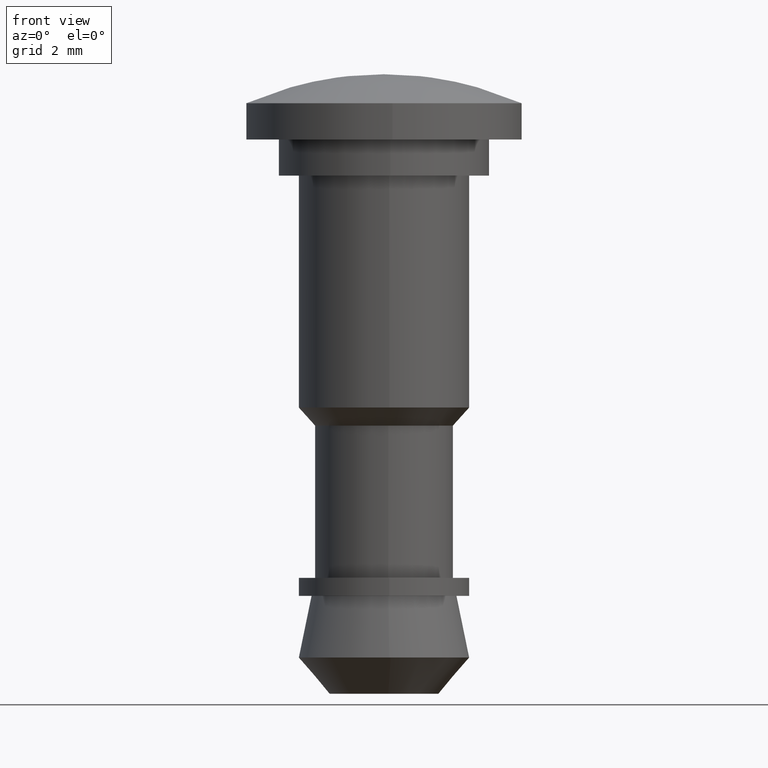
[diagram: clean part render]
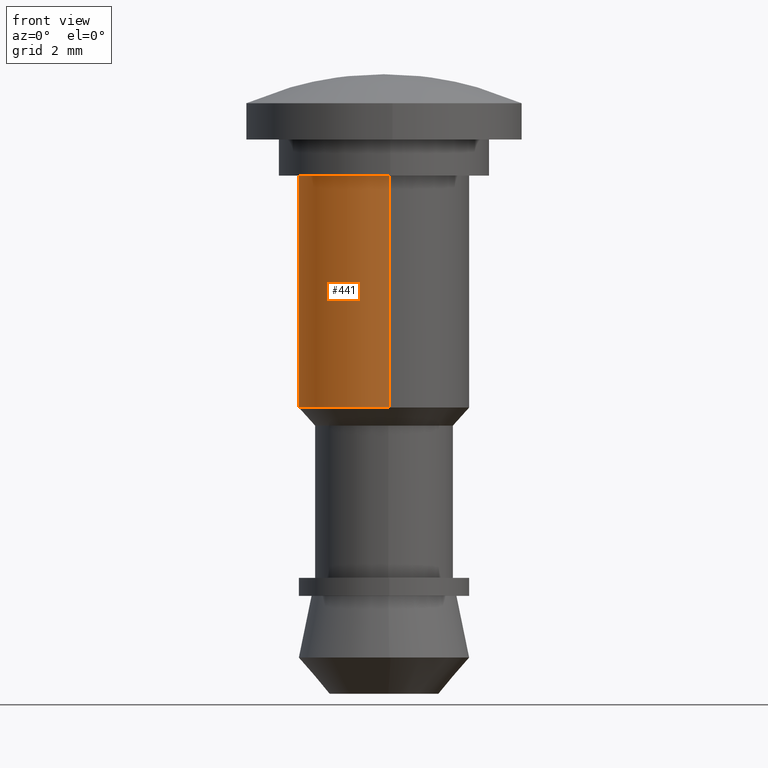
[diagram: same view with one face highlighted and labeled with its STEP entity id]
A machine part, front view. The second image highlights one B-rep face of the part: STEP entity #441.
In plain terms, the highlighted face is a freeform B-spline surface patch.
Its self-contained STEP definition (entity closure, byte-faithful):
#248=CARTESIAN_POINT('',(-0.143464067918807,2.345616776290660,-6.400000000000111));
#249=VERTEX_POINT('',#248);
#267=CARTESIAN_POINT('',(-0.143464067918807,2.345616776290660,2.220446E-016));
#268=VERTEX_POINT('',#267);
#269=CARTESIAN_POINT('',(-0.143464067918807,2.345616776290660,2.220446E-016));
#270=CARTESIAN_POINT('',(-0.143464067918807,2.345616776290660,-6.400000000000111));
#271=QUASI_UNIFORM_CURVE('',1,(#269,#270),.UNSPECIFIED.,.F.,.U.);
#272=EDGE_CURVE('',#268,#249,#271,.T.);
#291=CARTESIAN_POINT('',(0.143464067918807,-2.345616776290660,2.220446E-016));
#292=VERTEX_POINT('',#291);
#306=CARTESIAN_POINT('',(0.143463873339650,-2.345616788191615,-6.400000000000112));
#307=VERTEX_POINT('',#306);
#308=CARTESIAN_POINT('',(0.143464067918807,-2.345616776290660,2.220446E-016));
#309=CARTESIAN_POINT('',(0.143463873339650,-2.345616788191615,-6.400000000000112));
#310=QUASI_UNIFORM_CURVE('',1,(#308,#309),.UNSPECIFIED.,.F.,.U.);
#311=EDGE_CURVE('',#292,#307,#310,.T.);
#359=CARTESIAN_POINT('',(0.143464067906914,-2.345616776291387,0.160000000000003));
#360=CARTESIAN_POINT('',(-2.202152708384472,-2.489080844198301,0.160000000000003));
#361=CARTESIAN_POINT('',(-2.345616776291387,-0.143464067906914,0.160000000000003));
#362=CARTESIAN_POINT('',(-2.489080844198301,2.202152708384472,0.160000000000003));
#363=CARTESIAN_POINT('',(-0.143464067906914,2.345616776291387,0.160000000000003));
#364=CARTESIAN_POINT('',(0.143464067906914,-2.345616776291387,-6.564000000000114));
#365=CARTESIAN_POINT('',(-2.202152708384472,-2.489080844198301,-6.564000000000114));
#366=CARTESIAN_POINT('',(-2.345616776291387,-0.143464067906914,-6.564000000000114));
#367=CARTESIAN_POINT('',(-2.489080844198301,2.202152708384472,-6.564000000000114));
#368=CARTESIAN_POINT('',(-0.143464067906914,2.345616776291387,-6.564000000000114));
#376=(BOUNDED_SURFACE()B_SPLINE_SURFACE(2,1,((#359,#364),(#360,#365),(#361,#366),(#362,#367),(#363,#368)),.UNSPECIFIED.,.F.,.F.,.U.)B_SPLINE_SURFACE_WITH_KNOTS((3,2,3),(2,2),(0.0,3.893607486307092,7.787214972614184),(0.0,6.724000000000117),.UNSPECIFIED.)GEOMETRIC_REPRESENTATION_ITEM()RATIONAL_B_SPLINE_SURFACE(((1.0,1.0),(0.707106781186548,0.707106781186548),(1.0,1.0),(0.707106781186548,0.707106781186548),(1.0,1.0)))REPRESENTATION_ITEM('')SURFACE());
#377=CARTESIAN_POINT('',(-2.350000000000000,0.0,-6.400000000000111));
#378=VERTEX_POINT('',#377);
#379=CARTESIAN_POINT('',(-2.350000000000000,0.0,-6.400000000000111));
#380=CARTESIAN_POINT('',(-2.350000000000001,2.210659257205923,-6.400000000000111));
#381=CARTESIAN_POINT('',(-0.143464067918807,2.345616776290660,-6.400000000000111));
#389=(BOUNDED_CURVE()B_SPLINE_CURVE(2,(#379,#380,#381),.UNSPECIFIED.,.F.,.U.)B_SPLINE_CURVE_WITH_KNOTS((3,3),(0.0,0.239332962240218),.UNSPECIFIED.)CURVE()GEOMETRIC_REPRESENTATION_ITEM()RATIONAL_B_SPLINE_CURVE((1.0,0.719603993285216,0.976072041669452))REPRESENTATION_ITEM(''));
#390=EDGE_CURVE('',#378,#249,#389,.T.);
#391=ORIENTED_EDGE('',*,*,#390,.F.);
#392=CARTESIAN_POINT('',(0.143463873339650,-2.345616788191615,-6.400000000000112));
#393=CARTESIAN_POINT('',(0.071798798638874,-2.350000000000000,-6.400000000000111));
#394=CARTESIAN_POINT('',(0.0,-2.350000000000000,-6.400000000000111));
#395=CARTESIAN_POINT('',(-2.350000000000001,-2.350000000000001,-6.400000000000110));
#396=CARTESIAN_POINT('',(-2.350000000000000,0.0,-6.400000000000111));
#404=(BOUNDED_CURVE()B_SPLINE_CURVE(2,(#392,#393,#394,#395,#396),.UNSPECIFIED.,.F.,.U.)B_SPLINE_CURVE_WITH_KNOTS((3,2,3),(0.739332990867239,0.750000000000000,1.0),.UNSPECIFIED.)CURVE()GEOMETRIC_REPRESENTATION_ITEM()RATIONAL_B_SPLINE_CURVE((0.976072103022614,0.987502821439973,1.0,0.707106781186547,1.0))REPRESENTATION_ITEM(''));
#405=EDGE_CURVE('',#307,#378,#404,.T.);
#406=ORIENTED_EDGE('',*,*,#405,.F.);
#407=ORIENTED_EDGE('',*,*,#311,.F.);
#408=CARTESIAN_POINT('',(-2.350000000000000,0.0,0.0));
#409=VERTEX_POINT('',#408);
#410=CARTESIAN_POINT('',(0.143464067918807,-2.345616776290660,2.220446E-016));
#411=CARTESIAN_POINT('',(0.071798993763611,-2.350000000000000,0.0));
#412=CARTESIAN_POINT('',(0.0,-2.350000000000000,0.0));
#413=CARTESIAN_POINT('',(-2.350000000000001,-2.350000000000001,0.0));
#414=CARTESIAN_POINT('',(-2.350000000000000,0.0,0.0));
#422=(BOUNDED_CURVE()B_SPLINE_CURVE(2,(#410,#411,#412,#413,#414),.UNSPECIFIED.,.F.,.U.)B_SPLINE_CURVE_WITH_KNOTS((3,2,3),(0.739332962240218,0.750000000000000,1.0),.UNSPECIFIED.)CURVE()GEOMETRIC_REPRESENTATION_ITEM()RATIONAL_B_SPLINE_CURVE((0.976072041669452,0.987502787901332,1.0,0.707106781186547,1.0))REPRESENTATION_ITEM(''));
#423=EDGE_CURVE('',#292,#409,#422,.T.);
#424=ORIENTED_EDGE('',*,*,#423,.T.);
#425=CARTESIAN_POINT('',(-2.350000000000000,0.0,0.0));
#426=CARTESIAN_POINT('',(-2.350000000000001,2.210659257205923,0.0));
#427=CARTESIAN_POINT('',(-0.143464067918807,2.345616776290660,2.220446E-016));
#435=(BOUNDED_CURVE()B_SPLINE_CURVE(2,(#425,#426,#427),.UNSPECIFIED.,.F.,.U.)B_SPLINE_CURVE_WITH_KNOTS((3,3),(0.0,0.239332962240218),.UNSPECIFIED.)CURVE()GEOMETRIC_REPRESENTATION_ITEM()RATIONAL_B_SPLINE_CURVE((1.0,0.719603993285216,0.976072041669452))REPRESENTATION_ITEM(''));
#436=EDGE_CURVE('',#409,#268,#435,.T.);
#437=ORIENTED_EDGE('',*,*,#436,.T.);
#438=ORIENTED_EDGE('',*,*,#272,.T.);
#439=EDGE_LOOP('',(#391,#406,#407,#424,#437,#438));
#440=FACE_OUTER_BOUND('',#439,.T.);
#441=ADVANCED_FACE('',(#440),#376,.T.);